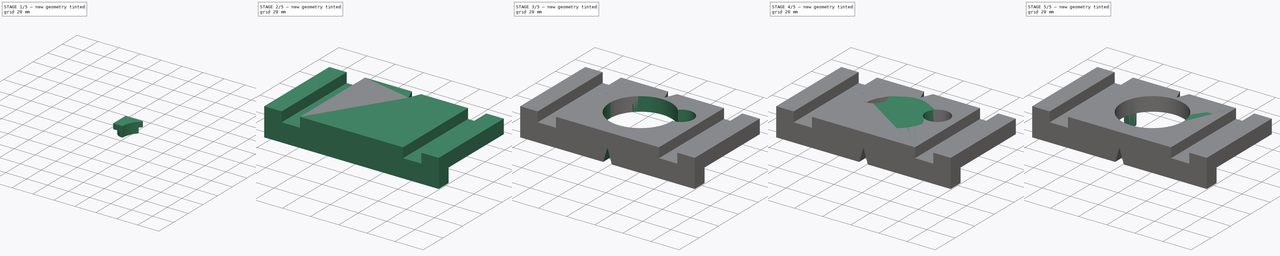
[diagram: build sequence overview — one tinted view per stage of 5, left to right]
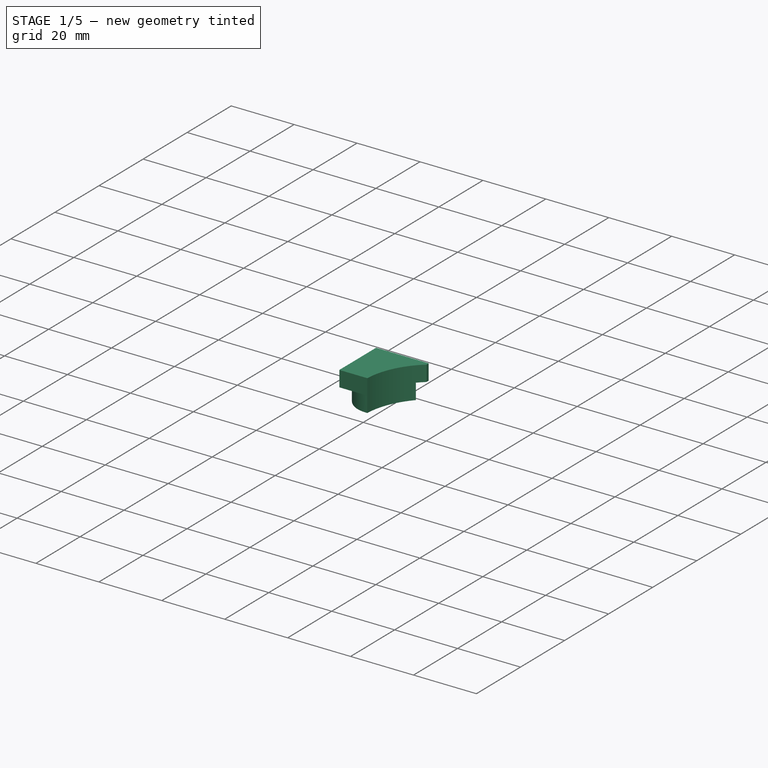
[diagram: stage 1 of 5 — iso view after this stage's code; geometry added in this stage tinted green]
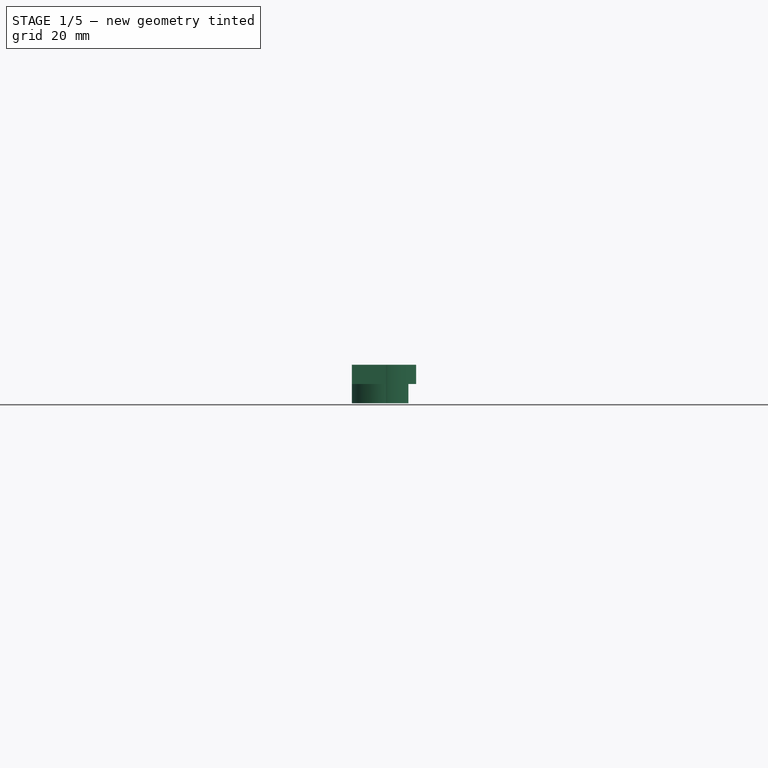
[diagram: stage 1 of 5 — front view after this stage's code; geometry added in this stage tinted green]
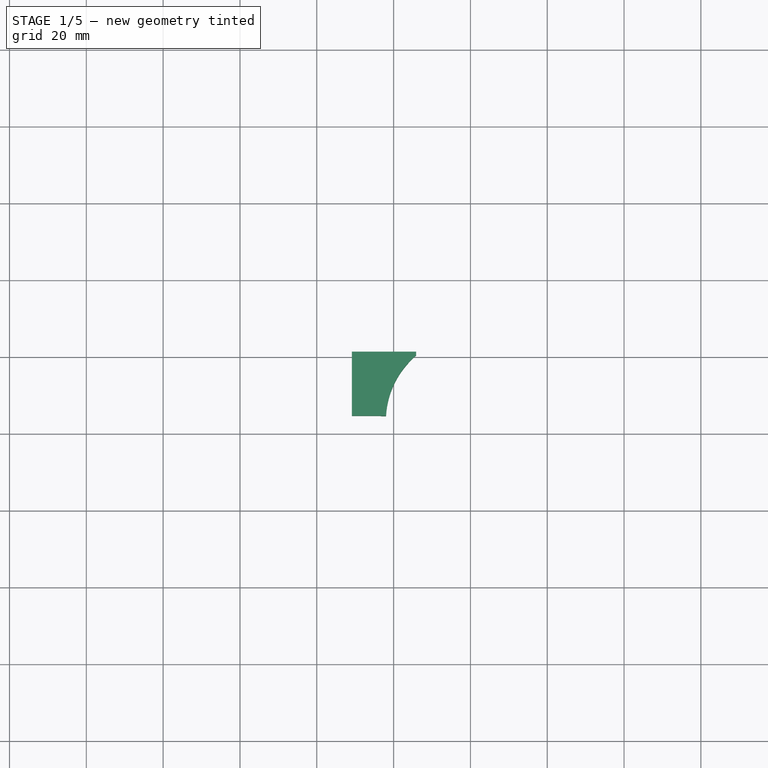
[diagram: stage 1 of 5 — top view after this stage's code; geometry added in this stage tinted green]
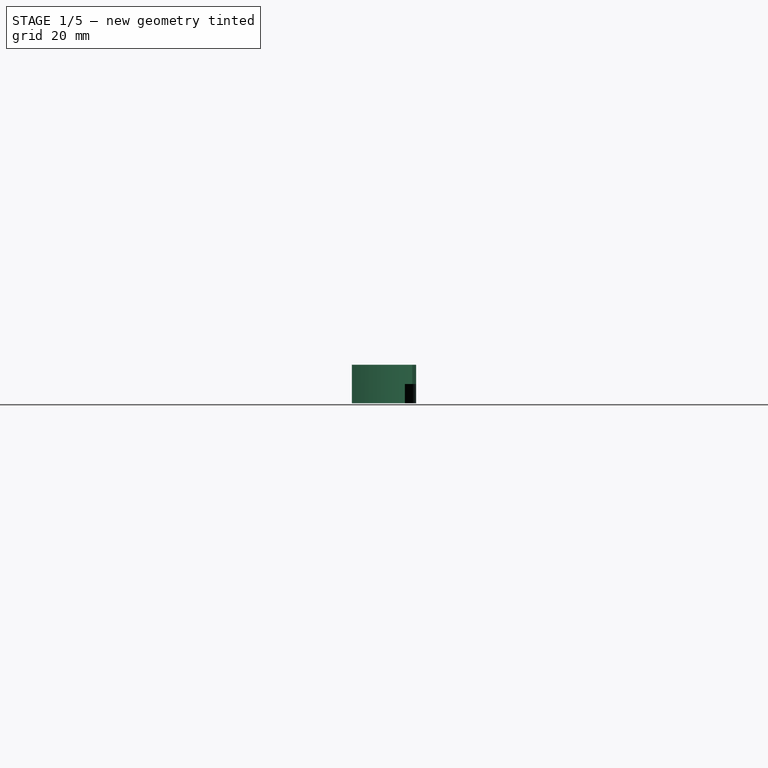
[diagram: stage 1 of 5 — right view after this stage's code; geometry added in this stage tinted green]
FCSTD DOCUMENT  (FreeCAD 0.21R33771 (Git))
Label: ConcealedHingeTemplate
License: All rights reserved
LicenseURL: https://en.wikipedia.org/wiki/All_rights_reserved
objects: Sketcher::SketchObject×15, PartDesign::Pocket×9, PartDesign::Body×5, PartDesign::Pad×4, PartDesign::FeatureBase×3, Spreadsheet::Sheet×1, PartDesign::SubShapeBinder×1
note: 50 computed .brp shape members not serialized (recipe doc carries the construction recipe); baked Part::Feature solids carry a one-line shape summary decoded from their .brp

FEATURE [PartDesign::Body] Body003  label="HingeTemplateBothBody"
  BaseFeature = -> Body
  Group = -> [BaseFeature002,Sketch009,Sketch011,Pocket005,Pocket006,Sketch012,Pocket007]
  Origin = -> Origin003
  Tip = -> Pocket007
FEATURE [Sketcher::SketchObject] Sketch013
  FullyConstrained = true
  MapMode = 5
  Support = -> [XY_Plane004]
  expr: Constraints[10] = <<config>>.hole_x
  expr: Constraints[11] = <<config>>.hole_y
  expr: Constraints[12] = <<config>>.hinge_dia
  expr: Constraints[13] = <<config>>.copy_dia
  expr: Constraints[15] = <<config>>.hinge_copy_dia
  expr: Constraints[17] = <<config>>.bit_dia
  expr: Constraints[19] = <<config>>.copy_dia
  expr: Constraints[9] = <<config>>.hinge_x
  sketch-geometry (8):
    g0: Circle CenterX=0 CenterY=23.5 CenterZ=0 NormalX=0 NormalY=0 NormalZ=1 AngleXU=0 Radius=17.5
    g1: Circle CenterX=-22.5 CenterY=33 CenterZ=0 NormalX=0 NormalY=0 NormalZ=1 AngleXU=0 Radius=8.5
    g2: Circle CenterX=22.5 CenterY=33 CenterZ=0 NormalX=0 NormalY=0 NormalZ=1 AngleXU=0 Radius=8.5
    g3: LineSegment StartX=-22.5 StartY=33 StartZ=0 EndX=0 EndY=33 EndZ=0
    g4: LineSegment StartX=22.5 StartY=33 StartZ=0 EndX=0 EndY=33 EndZ=0
    g5: Circle CenterX=0 CenterY=23.5 CenterZ=0 NormalX=0 NormalY=0 NormalZ=1 AngleXU=0 Radius=22
    g6: Circle CenterX=0 CenterY=10 CenterZ=0 NormalX=0 NormalY=0 NormalZ=1 AngleXU=0 Radius=4
    g7: Circle CenterX=0 CenterY=10 CenterZ=0 NormalX=0 NormalY=0 NormalZ=1 AngleXU=0 Radius=8.5
  constraints (21):
    c: PointOnObject(g0,g-2)
    c: Coincident(g3,g1)
    c: PointOnObject(g3,g-2)
    c: Horizontal(g3)
    c: Coincident(g4,g2)
    c: Coincident(g4,g3)
    c: Horizontal(g4)
    c: Equal(g3,g4)
    c: Equal(g1,g2)
    c: DistanceY(g-1,g0) = 23.5
    c: DistanceY(g-1,g2) = 33
    c: DistanceX(g1,g2) = 45
    c: Diameter(g0) = 35
    c: Diameter(g1) = 17
    c: Coincident(g5,g0)
    c: Diameter(g5) = 44
    c: PointOnObject(g6,g-2)
    c: Diameter(g6) = 8
    c: Coincident(g7,g6)
    c: Diameter(g7) = 17
    c: Tangent(g5,g7)
FEATURE [Sketcher::SketchObject] Sketch014
  ExternalGeometry = -> [Sketch013]
  FullyConstrained = true
  MapMode = 5
  Support = -> [XY_Plane004]
  expr: Constraints[1] = 17 - 0.3
  sketch-geometry (1):
    g0: Circle CenterX=-22.5 CenterY=33 CenterZ=0 NormalX=0 NormalY=0 NormalZ=1 AngleXU=0 Radius=8.35
  constraints (2):
    c: Coincident(g0,g-3)
    c: Diameter(g0) = 16.7
FEATURE [Sketcher::SketchObject] Sketch015
  ExternalGeometry = -> [Sketch014]
  FullyConstrained = true
  MapMode = 5
  Support = -> [XY_Plane004]
  sketch-geometry (4):
    g0: LineSegment StartX=-30.85 StartY=41.35 StartZ=0 EndX=-14.15 EndY=41.35 EndZ=0
    g1: LineSegment StartX=-14.15 StartY=41.35 StartZ=0 EndX=-14.15 EndY=24.65 EndZ=0
    g2: LineSegment StartX=-14.15 StartY=24.65 StartZ=0 EndX=-30.85 EndY=24.65 EndZ=0
    g3: LineSegment StartX=-30.85 StartY=24.65 StartZ=0 EndX=-30.85 EndY=41.35 EndZ=0
  constraints (12):
    c: Coincident(g0,g1)
    c: Coincident(g1,g2)
    c: Coincident(g2,g3)
    c: Coincident(g3,g0)
    c: Horizontal(g0)
    c: Horizontal(g2)
    c: Vertical(g1)
    c: Vertical(g3)
    c: Tangent(g-3,g0)
    c: Tangent(g1,g-3)
    c: Tangent(g2,g-3)
    c: Tangent(g3,g-3)
FEATURE [PartDesign::Pad] Pad002
  Direction = (0,0,1)
  Length = 10
  Length2 = 10
  Profile = -> Sketch014
  ReferenceAxis = -> Sketch014 [N_Axis]
  Type = 0
  expr: Length = <<config>>.thickness
FEATURE [PartDesign::Pad] Pad003
  BaseFeature = -> Pad002
  Direction = (0,0,1)
  Length = 10
  Length2 = -5
  Profile = -> Sketch015
  ReferenceAxis = -> Sketch015 [N_Axis]
  Type = 4
  expr: Length = <<config>>.thickness
FEATURE [Sketcher::SketchObject] Sketch016
  ExternalGeometry = -> [Sketch013]
  FullyConstrained = true
  MapMode = 5
  Support = -> [XY_Plane004]
  sketch-geometry (1):
    g0: Circle CenterX=0 CenterY=23.5 CenterZ=0 NormalX=0 NormalY=0 NormalZ=1 AngleXU=0 Radius=22
  constraints (2):
    c: Coincident(g0,g-3)
    c: Tangent(g0,g-3)
FEATURE [PartDesign::Pocket] Pocket008
  BaseFeature = -> Pad003
  Direction = (0,0,-1)
  Length = 5
  Length2 = 5
  Profile = -> Sketch016
  ReferenceAxis = -> Sketch016 [N_Axis]
  Reversed = true
  Type = 1
FEATURE [PartDesign::Body] Body004  label="Inlay"
  Group = -> [Sketch013,Sketch014,Sketch015,Pad002,Pad003,Sketch016,Pocket008]
  Origin = -> Origin004
  Tip = -> Pocket008
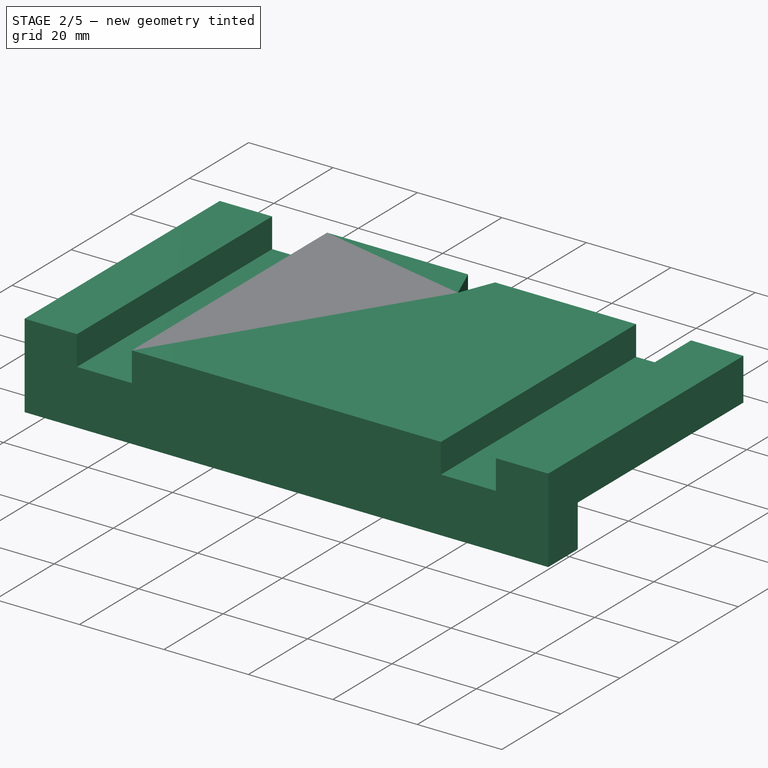
[diagram: stage 2 of 5 — iso view after this stage's code; geometry added in this stage tinted green]
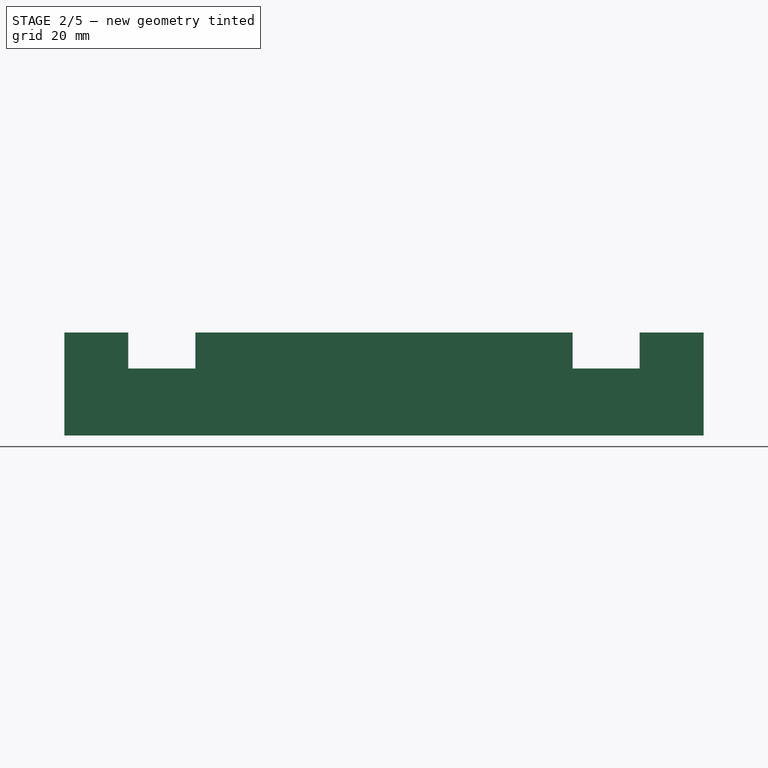
[diagram: stage 2 of 5 — front view after this stage's code; geometry added in this stage tinted green]
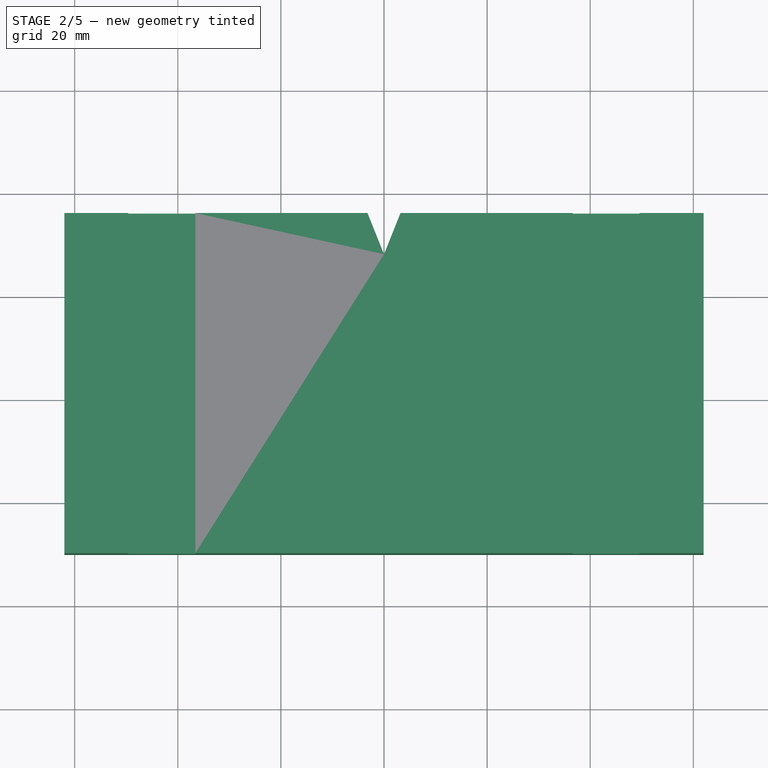
[diagram: stage 2 of 5 — top view after this stage's code; geometry added in this stage tinted green]
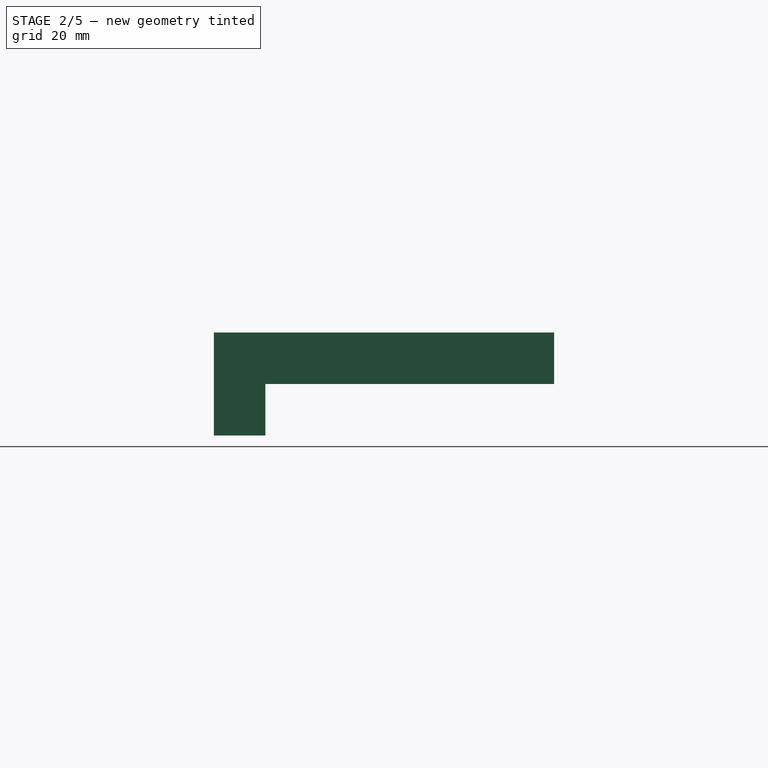
[diagram: stage 2 of 5 — right view after this stage's code; geometry added in this stage tinted green]
FEATURE [Sketcher::SketchObject] Sketch
  FullyConstrained = true
  MapMode = 5
  Support = -> [XY_Plane]
  expr: Constraints[10] = <<config>>.hole_x
  expr: Constraints[11] = <<config>>.hole_y
  expr: Constraints[12] = <<config>>.hinge_dia
  expr: Constraints[13] = <<config>>.copy_dia
  expr: Constraints[15] = <<config>>.hinge_copy_dia
  expr: Constraints[17] = <<config>>.bit_dia
  expr: Constraints[19] = <<config>>.copy_dia
  expr: Constraints[9] = <<config>>.hinge_x
  sketch-geometry (8):
    g0: Circle CenterX=0 CenterY=23.5 CenterZ=0 NormalX=0 NormalY=0 NormalZ=1 AngleXU=0 Radius=17.5
    g1: Circle CenterX=-22.5 CenterY=33 CenterZ=0 NormalX=0 NormalY=0 NormalZ=1 AngleXU=0 Radius=8.5
    g2: Circle CenterX=22.5 CenterY=33 CenterZ=0 NormalX=0 NormalY=0 NormalZ=1 AngleXU=0 Radius=8.5
    g3: LineSegment StartX=-22.5 StartY=33 StartZ=0 EndX=0 EndY=33 EndZ=0
    g4: LineSegment StartX=22.5 StartY=33 StartZ=0 EndX=0 EndY=33 EndZ=0
    g5: Circle CenterX=0 CenterY=23.5 CenterZ=0 NormalX=0 NormalY=0 NormalZ=1 AngleXU=0 Radius=22
    g6: Circle CenterX=0 CenterY=10 CenterZ=0 NormalX=0 NormalY=0 NormalZ=1 AngleXU=0 Radius=4
    g7: Circle CenterX=0 CenterY=10 CenterZ=0 NormalX=0 NormalY=0 NormalZ=1 AngleXU=0 Radius=8.5
  constraints (21):
    c: PointOnObject(g0,g-2)
    c: Coincident(g3,g1)
    c: PointOnObject(g3,g-2)
    c: Horizontal(g3)
    c: Coincident(g4,g2)
    c: Coincident(g4,g3)
    c: Horizontal(g4)
    c: Equal(g3,g4)
    c: Equal(g1,g2)
    c: DistanceY(g-1,g0) = 23.5
    c: DistanceY(g-1,g2) = 33
    c: DistanceX(g1,g2) = 45
    c: Diameter(g0) = 35
    c: Diameter(g1) = 17
    c: Coincident(g5,g0)
    c: Diameter(g5) = 44
    c: PointOnObject(g6,g-2)
    c: Diameter(g6) = 8
    c: Coincident(g7,g6)
    c: Diameter(g7) = 17
    c: Tangent(g5,g7)
FEATURE [Spreadsheet::Sheet] Spreadsheet  label="config"
  cells = A1='hinge diameter; B1(hinge_dia)==35 mm; A2='bit diameter; B2(bit_dia)==8 mm; A3='copy diameter; B3(copy_dia)==17 mm; A4='hinge x; B4(hinge_x)==23.5 mm; A5='hole x; B5(hole_x)==33 mm; A6='hole y; B6(hole_y)==45 mm; A7='hinge+copy dia; B7(hinge_copy_dia)==hinge_dia + copy_dia - bit_dia; A8='hole dia; B8(hole_dia)==8 mm; A9='thickness; B9(thickness)==10 mm; A10='width; B10(width)==hinge_copy_dia * 1.5; A11='length; B11(length)==(hole_y + copy_dia) * 2
FEATURE [Sketcher::SketchObject] Sketch002  label="MainSketch"
  FullyConstrained = true
  MapMode = 5
  Placement = pos=(0,0,0) rot=(0.57735,0.57735,0.57735;2.0944rad)
  Support = -> [YZ_Plane]
  expr: Constraints[14] = <<config>>.thickness
  expr: Constraints[15] = <<config>>.width
  sketch-geometry (6):
    g0: LineSegment StartX=0 StartY=0 StartZ=0 EndX=0 EndY=-10 EndZ=0
    g1: LineSegment StartX=0 StartY=-10 StartZ=0 EndX=-10 EndY=-10 EndZ=0
    g2: LineSegment StartX=-10 StartY=-10 StartZ=0 EndX=-10 EndY=10 EndZ=0
    g3: LineSegment StartX=-10 StartY=10 StartZ=0 EndX=56 EndY=10 EndZ=0
    g4: LineSegment StartX=56 StartY=10 StartZ=0 EndX=56 EndY=0 EndZ=0
    g5: LineSegment StartX=56 StartY=0 StartZ=0 EndX=0 EndY=0 EndZ=0
  constraints (17):
    c: Coincident(g-1,g0)
    c: PointOnObject(g0,g-2)
    c: Coincident(g0,g1)
    c: Horizontal(g1)
    c: Coincident(g1,g2)
    c: Vertical(g2)
    c: Coincident(g2,g3)
    c: Horizontal(g3)
    c: Coincident(g3,g4)
    c: Vertical(g4)
    c: Coincident(g4,g5)
    c: Coincident(g5,g0)
    c: Horizontal(g5)
    c: Equal(g1,g4)
    c: DistanceY(g4,g4) = 10
    c: DistanceX(g3,g3) = 66
    c: Equal(g0,g4)
FEATURE [PartDesign::Pad] Pad
  Direction = (1,-2e-16,3e-16)
  Length = 124
  Length2 = 10
  Midplane = true
  Placement = pos=(0,0,0) rot=(0.57735,0.57735,0.57735;2.0944rad)
  Profile = -> Sketch002
  ReferenceAxis = -> Sketch002 [N_Axis]
  Type = 0
  expr: Length = <<config>>.length
FEATURE [Sketcher::SketchObject] Sketch003  label="ClampSketch"
  FullyConstrained = true
  MapMode = 5
  Placement = pos=(0,0,0) rot=(1,0,0;1.5708rad)
  Support = -> [XZ_Plane]
  expr: Constraints[25] = <<config>>.thickness + 1 mm
  expr: Constraints[28] = (<<config>>.hinge_copy_dia + <<config>>.copy_dia) * 1.2
  sketch-geometry (10):
    g0: LineSegment StartX=-49.6 StartY=11 StartZ=0 EndX=-36.6 EndY=11 EndZ=0
    g1: LineSegment StartX=-36.6 StartY=11 StartZ=0 EndX=-36.6 EndY=3 EndZ=0
    g2: LineSegment StartX=-36.6 StartY=3 StartZ=0 EndX=-49.6 EndY=3 EndZ=0
    g3: LineSegment StartX=-49.6 StartY=3 StartZ=0 EndX=-49.6 EndY=11 EndZ=0
    g4: LineSegment StartX=36.6 StartY=11 StartZ=0 EndX=49.6 EndY=11 EndZ=0
    g5: LineSegment StartX=49.6 StartY=11 StartZ=0 EndX=49.6 EndY=3 EndZ=0
    g6: LineSegment StartX=49.6 StartY=3 StartZ=0 EndX=36.6 EndY=3 EndZ=0
    g7: LineSegment StartX=36.6 StartY=3 StartZ=0 EndX=36.6 EndY=11 EndZ=0
    g8: LineSegment StartX=-36.6 StartY=11 StartZ=0 EndX=0 EndY=11 EndZ=0
    g9: LineSegment StartX=36.6 StartY=11 StartZ=0 EndX=0 EndY=11 EndZ=0
  constraints (29):
    c: Coincident(g0,g1)
    c: Coincident(g1,g2)
    c: Coincident(g2,g3)
    c: Coincident(g3,g0)
    c: Horizontal(g0)
    c: Horizontal(g2)
    c: Vertical(g1)
    c: Vertical(g3)
    c: Coincident(g4,g5)
    c: Coincident(g5,g6)
    c: Coincident(g6,g7)
    c: Coincident(g7,g4)
    c: Horizontal(g4)
    c: Horizontal(g6)
    c: Vertical(g5)
    c: Vertical(g7)
    c: Equal(g0,g4)
    c: Equal(g1,g5)
    c: Coincident(g8,g0)
    c: Horizontal(g8)
    c: Coincident(g9,g4)
    c: Coincident(g9,g8)
    c: Horizontal(g9)
    c: PointOnObject(g8,g-2)
    c: Equal(g8,g9)
    c: DistanceY(g-1,g8) = 11
    c: DistanceY(g3,g3) = 8
    c: DistanceX(g2,g2) = 13
    c: DistanceX(g0,g4) = 73.2
FEATURE [PartDesign::Pocket] Pocket
  BaseFeature = -> Pad
  Direction = (0,1,-2e-16)
  Length = 5
  Length2 = 5
  Midplane = true
  Placement = pos=(0,0,0) rot=(0.57735,0.57735,0.57735;2.0944rad)
  Profile = -> Sketch003
  ReferenceAxis = -> Sketch003 [N_Axis]
  Type = 1
FEATURE [Sketcher::SketchObject] Sketch004  label="CenterTopSketch"
  FullyConstrained = true
  MapMode = 5
  Support = -> [XY_Plane]
  expr: Constraints[1] = <<config>>.width - <<config>>.thickness
  sketch-geometry (4):
    g0: LineSegment StartX=0 StartY=0 StartZ=0 EndX=0 EndY=56 EndZ=0
    g1: LineSegment StartX=0 StartY=48 StartZ=0 EndX=-4 EndY=58 EndZ=0
    g2: LineSegment StartX=-4 StartY=58 StartZ=0 EndX=4 EndY=58 EndZ=0
    g3: LineSegment StartX=4 StartY=58 StartZ=0 EndX=0 EndY=48 EndZ=0
  constraints (12):
    c: Coincident(g0,g-1)
    c: DistanceY(g0,g0) = 56
    c: Vertical(g0)
    c: PointOnObject(g1,g0)
    c: Coincident(g1,g2)
    c: Horizontal(g2)
    c: Coincident(g2,g3)
    c: Coincident(g3,g1)
    c: Equal(g1,g3)
    c: DistanceY(g1,g0) = 8
    c: DistanceY(g0,g2) = 2
    c: DistanceX(g2,g2) = 8
FEATURE [PartDesign::Pocket] Pocket001
  BaseFeature = -> Pocket
  Direction = (0,0,-1)
  Length = 5
  Length2 = 5
  Placement = pos=(0,0,0) rot=(0.57735,0.57735,0.57735;2.0944rad)
  Profile = -> Sketch004
  ReferenceAxis = -> Sketch004 [N_Axis]
  Reversed = true
  Type = 1
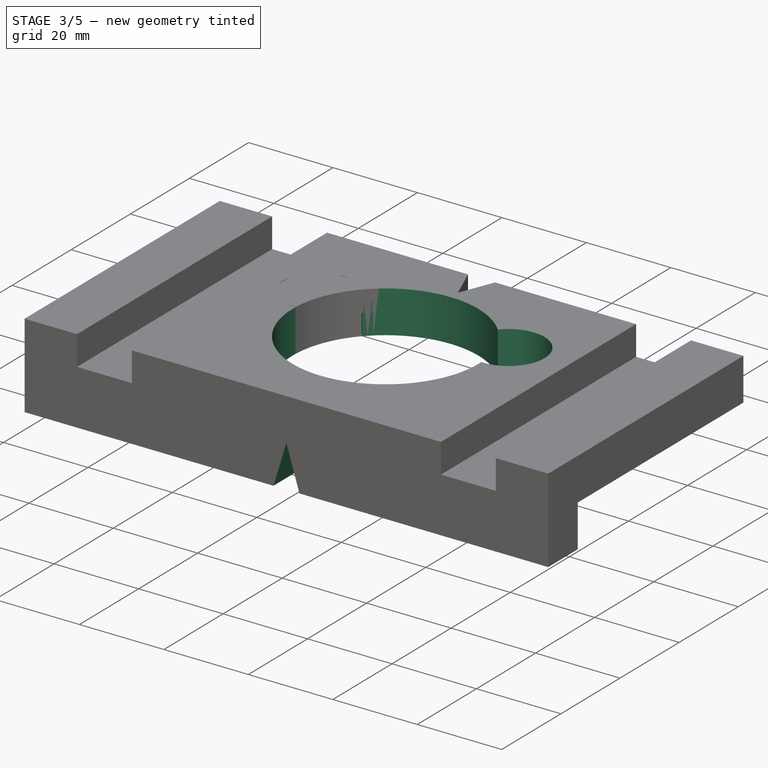
[diagram: stage 3 of 5 — iso view after this stage's code; geometry added in this stage tinted green]
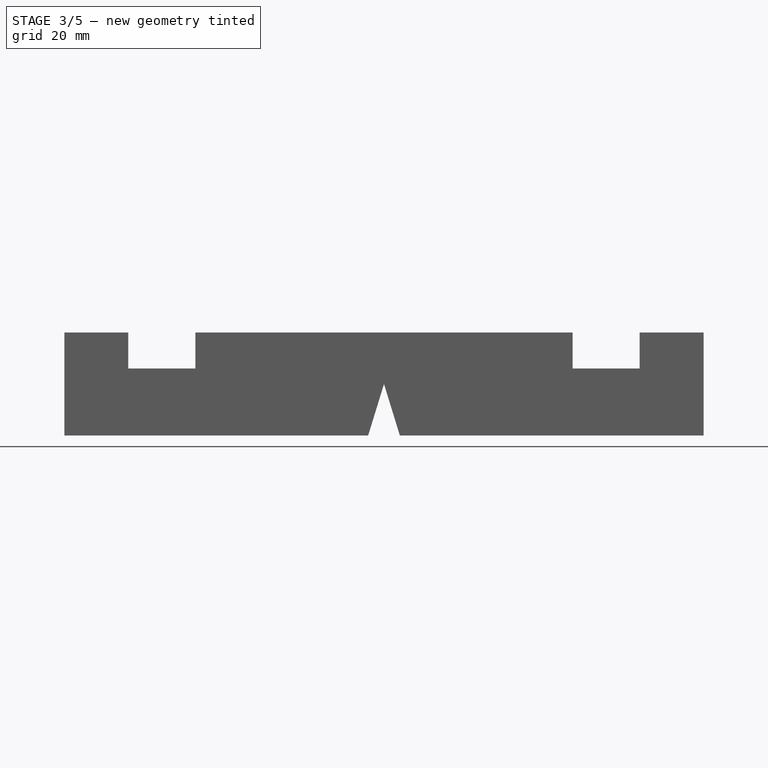
[diagram: stage 3 of 5 — front view after this stage's code; geometry added in this stage tinted green]
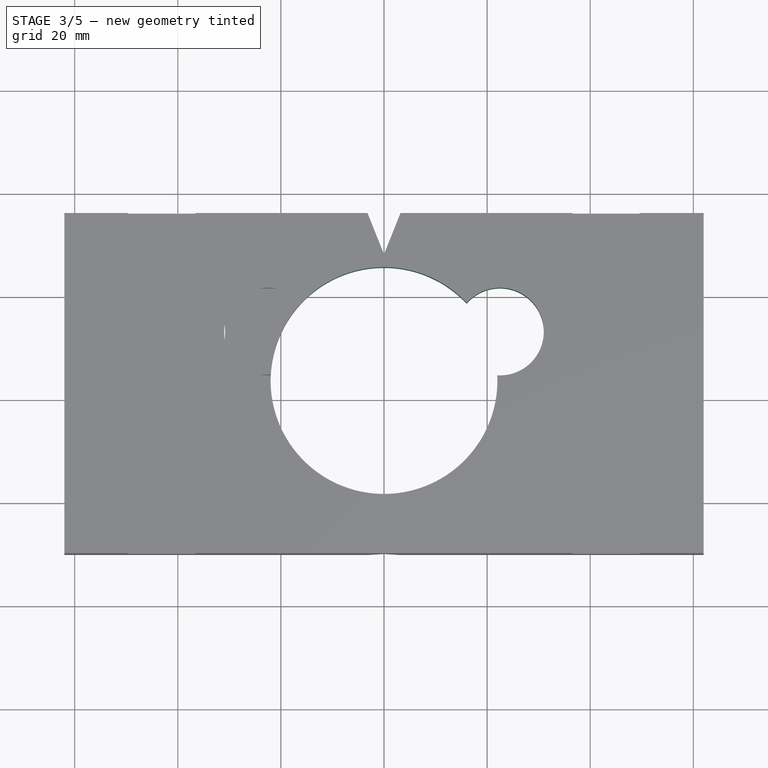
[diagram: stage 3 of 5 — top view after this stage's code; geometry added in this stage tinted green]
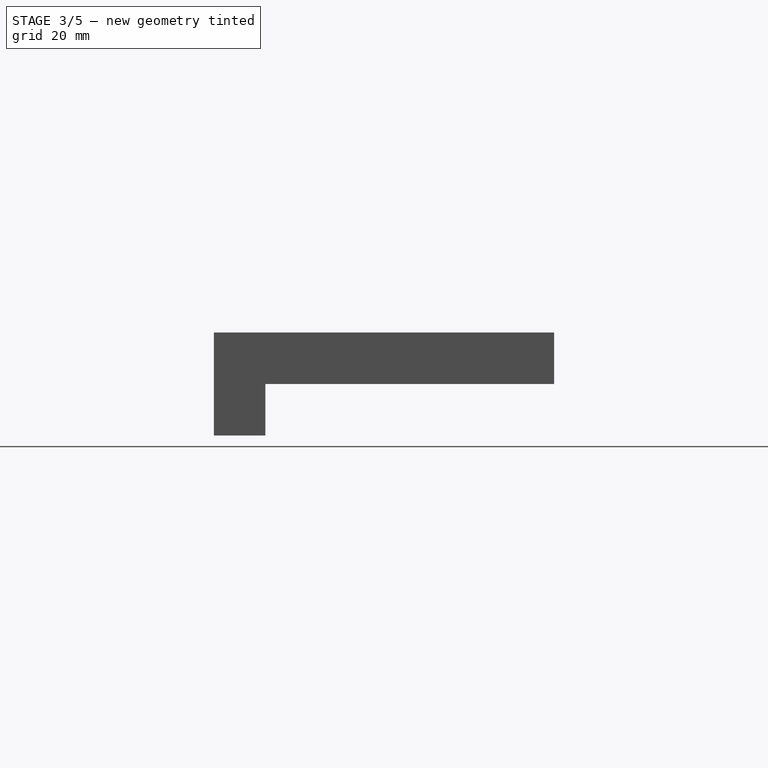
[diagram: stage 3 of 5 — right view after this stage's code; geometry added in this stage tinted green]
FEATURE [Sketcher::SketchObject] Sketch005  label="CenterSideSketch"
  FullyConstrained = true
  MapMode = 5
  Placement = pos=(0,0,0) rot=(1,0,0;1.5708rad)
  Support = -> [XZ_Plane]
  expr: Constraints[7] = 8 mm + 5 mm
  sketch-geometry (3):
    g0: LineSegment StartX=4e-16 StartY=0 StartZ=0 EndX=-4 EndY=-13 EndZ=0
    g1: LineSegment StartX=-4 StartY=-13 StartZ=0 EndX=4 EndY=-13 EndZ=0
    g2: LineSegment StartX=4 StartY=-13 StartZ=0 EndX=4e-16 EndY=0 EndZ=0
  constraints (8):
    c: Coincident(g0,g-1)
    c: Coincident(g1,g0)
    c: Horizontal(g1)
    c: Coincident(g2,g0)
    c: Equal(g0,g2)
    c: DistanceX(g1,g1) = 8
    c: Coincident(g1,g2)
    c: DistanceY(g1,g0) = 13
FEATURE [PartDesign::Pocket] Pocket002
  BaseFeature = -> Pocket001
  Direction = (0,1,-2e-16)
  Length = 5
  Length2 = 5
  Placement = pos=(0,0,0) rot=(0.57735,0.57735,0.57735;2.0944rad)
  Profile = -> Sketch005
  ReferenceAxis = -> Sketch005 [N_Axis]
  Reversed = true
  Type = 1
FEATURE [PartDesign::Body] Body002  label="HingeTemplateHingeBody"
  BaseFeature = -> Body
  Group = -> [BaseFeature001,Sketch007,Binder,Sketch008,Pad001,Pocket004]
  Origin = -> Origin002
  Tip = -> Pocket004
FEATURE [PartDesign::FeatureBase] BaseFeature002
  BaseFeature = -> Body
FEATURE [Sketcher::SketchObject] Sketch009
  FullyConstrained = true
  MapMode = 5
  Support = -> [XY_Plane003]
  expr: Constraints[10] = <<config>>.hole_x
  expr: Constraints[11] = <<config>>.hole_y
  expr: Constraints[12] = <<config>>.hinge_dia
  expr: Constraints[13] = <<config>>.copy_dia
  expr: Constraints[15] = <<config>>.hinge_copy_dia
  expr: Constraints[17] = <<config>>.bit_dia
  expr: Constraints[19] = <<config>>.copy_dia
  expr: Constraints[9] = <<config>>.hinge_x
  sketch-geometry (8):
    g0: Circle CenterX=0 CenterY=23.5 CenterZ=0 NormalX=0 NormalY=0 NormalZ=1 AngleXU=0 Radius=17.5
    g1: Circle CenterX=-22.5 CenterY=33 CenterZ=0 NormalX=0 NormalY=0 NormalZ=1 AngleXU=0 Radius=8.5
    g2: Circle CenterX=22.5 CenterY=33 CenterZ=0 NormalX=0 NormalY=0 NormalZ=1 AngleXU=0 Radius=8.5
    g3: LineSegment StartX=-22.5 StartY=33 StartZ=0 EndX=0 EndY=33 EndZ=0
    g4: LineSegment StartX=22.5 StartY=33 StartZ=0 EndX=0 EndY=33 EndZ=0
    g5: Circle CenterX=0 CenterY=23.5 CenterZ=0 NormalX=0 NormalY=0 NormalZ=1 AngleXU=0 Radius=22
    g6: Circle CenterX=0 CenterY=10 CenterZ=0 NormalX=0 NormalY=0 NormalZ=1 AngleXU=0 Radius=4
    g7: Circle CenterX=0 CenterY=10 CenterZ=0 NormalX=0 NormalY=0 NormalZ=1 AngleXU=0 Radius=8.5
  constraints (21):
    c: PointOnObject(g0,g-2)
    c: Coincident(g3,g1)
    c: PointOnObject(g3,g-2)
    c: Horizontal(g3)
    c: Coincident(g4,g2)
    c: Coincident(g4,g3)
    c: Horizontal(g4)
    c: Equal(g3,g4)
    c: Equal(g1,g2)
    c: DistanceY(g-1,g0) = 23.5
    c: DistanceY(g-1,g2) = 33
    c: DistanceX(g1,g2) = 45
    c: Diameter(g0) = 35
    c: Diameter(g1) = 17
    c: Coincident(g5,g0)
    c: Diameter(g5) = 44
    c: PointOnObject(g6,g-2)
    c: Diameter(g6) = 8
    c: Coincident(g7,g6)
    c: Diameter(g7) = 17
    c: Tangent(g5,g7)
FEATURE [Sketcher::SketchObject] Sketch011
  FullyConstrained = true
  MapMode = 5
  Support = -> [XY_Plane003]
  expr: Constraints[10] = <<config>>.hole_x
  expr: Constraints[11] = <<config>>.hole_y
  expr: Constraints[12] = <<config>>.hinge_dia
  expr: Constraints[13] = <<config>>.copy_dia
  expr: Constraints[15] = <<config>>.hinge_copy_dia
  expr: Constraints[17] = <<config>>.bit_dia
  expr: Constraints[19] = <<config>>.copy_dia
  expr: Constraints[9] = <<config>>.hinge_x
  sketch-geometry (8):
    g0: Circle CenterX=0 CenterY=23.5 CenterZ=0 NormalX=0 NormalY=0 NormalZ=1 AngleXU=0 Radius=17.5
    g1: Circle CenterX=-22.5 CenterY=33 CenterZ=0 NormalX=0 NormalY=0 NormalZ=1 AngleXU=0 Radius=8.5
    g2: Circle CenterX=22.5 CenterY=33 CenterZ=0 NormalX=0 NormalY=0 NormalZ=1 AngleXU=0 Radius=8.5
    g3: LineSegment StartX=-22.5 StartY=33 StartZ=0 EndX=0 EndY=33 EndZ=0
    g4: LineSegment StartX=22.5 StartY=33 StartZ=0 EndX=0 EndY=33 EndZ=0
    g5: Circle CenterX=0 CenterY=23.5 CenterZ=0 NormalX=0 NormalY=0 NormalZ=1 AngleXU=0 Radius=22
    g6: Circle CenterX=0 CenterY=10 CenterZ=0 NormalX=0 NormalY=0 NormalZ=1 AngleXU=0 Radius=4
    g7: Circle CenterX=0 CenterY=10 CenterZ=0 NormalX=0 NormalY=0 NormalZ=1 AngleXU=0 Radius=8.5
  constraints (21):
    c: PointOnObject(g0,g-2)
    c: Coincident(g3,g1)
    c: PointOnObject(g3,g-2)
    c: Horizontal(g3)
    c: Coincident(g4,g2)
    c: Coincident(g4,g3)
    c: Horizontal(g4)
    c: Equal(g3,g4)
    c: Equal(g1,g2)
    c: DistanceY(g-1,g0) = 23.5
    c: DistanceY(g-1,g2) = 33
    c: DistanceX(g1,g2) = 45
    c: Diameter(g0) = 35
    c: Diameter(g1) = 17
    c: Coincident(g5,g0)
    c: Diameter(g5) = 44
    c: PointOnObject(g6,g-2)
    c: Diameter(g6) = 8
    c: Coincident(g7,g6)
    c: Diameter(g7) = 17
    c: Tangent(g5,g7)
FEATURE [PartDesign::Pocket] Pocket005
  BaseFeature = -> BaseFeature002
  Direction = (0,0,-1)
  Length = 5
  Length2 = 5
  Profile = -> Sketch011
  ReferenceAxis = -> Sketch011 [N_Axis]
  Reversed = true
  Type = 1
FEATURE [PartDesign::Pocket] Pocket006
  BaseFeature = -> Pocket005
  Direction = (0,0,-1)
  Length = 5
  Length2 = 5
  Profile = -> Sketch009
  ReferenceAxis = -> Sketch009 [N_Axis]
  Reversed = true
  Type = 1
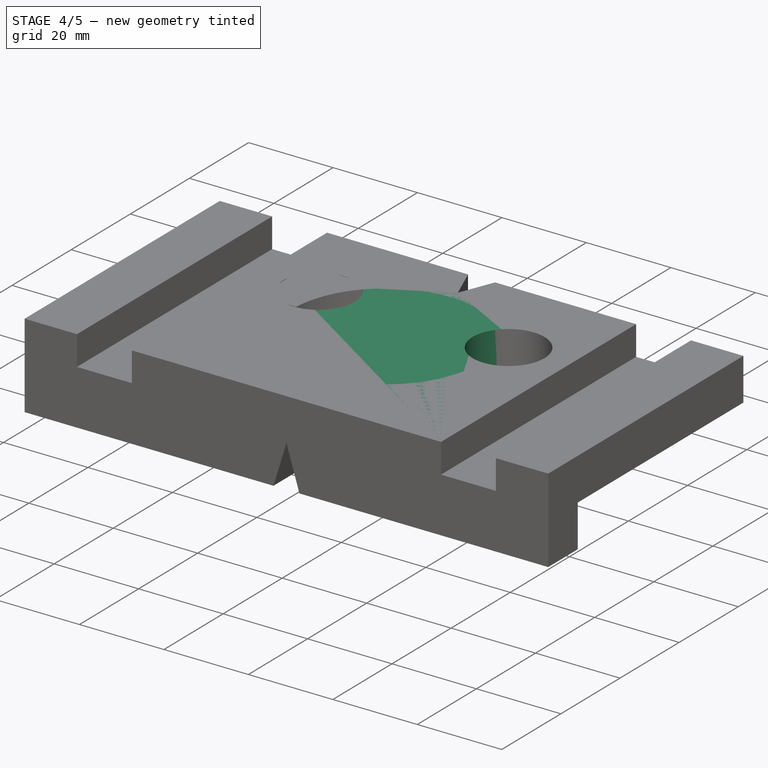
[diagram: stage 4 of 5 — iso view after this stage's code; geometry added in this stage tinted green]
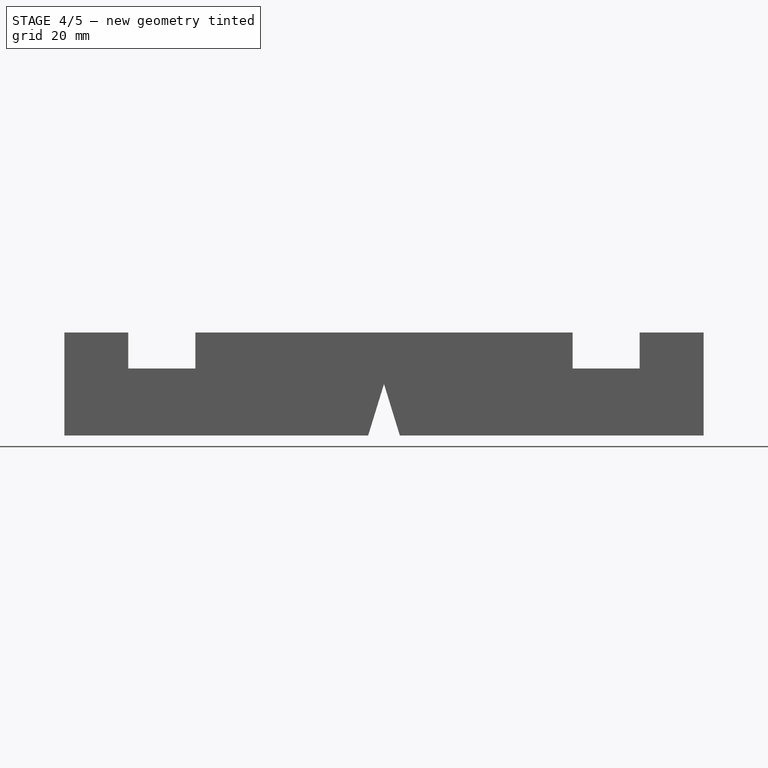
[diagram: stage 4 of 5 — front view after this stage's code; geometry added in this stage tinted green]
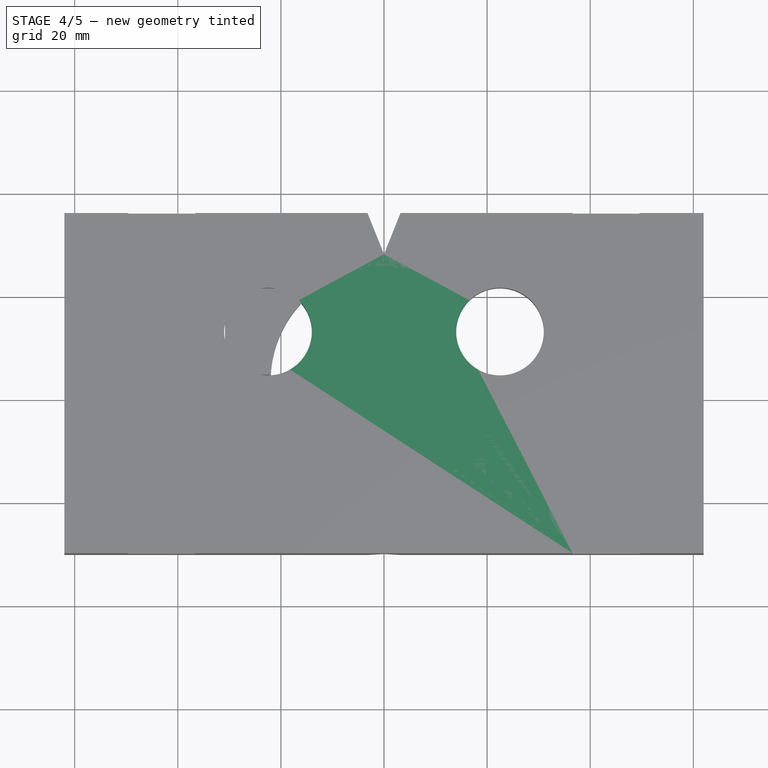
[diagram: stage 4 of 5 — top view after this stage's code; geometry added in this stage tinted green]
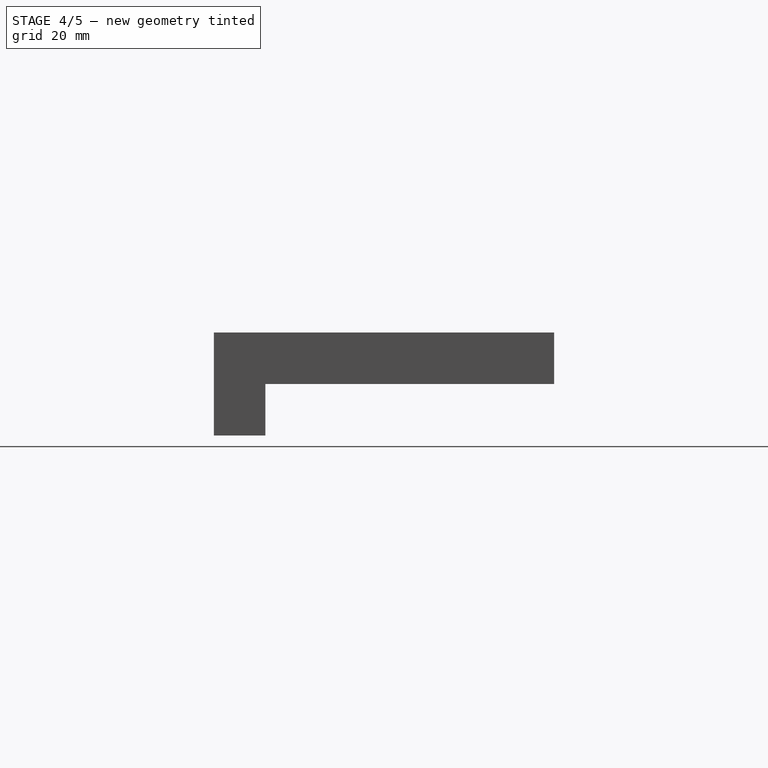
[diagram: stage 4 of 5 — right view after this stage's code; geometry added in this stage tinted green]
FEATURE [PartDesign::Body] Body  label="HingeTemplateBaseBody"
  Group = -> [Sketch,Sketch002,Pad,Sketch003,Pocket,Sketch004,Pocket001,Sketch005,Pocket002]
  Origin = -> Origin
  Tip = -> Pocket002
FEATURE [PartDesign::FeatureBase] BaseFeature  label="HoleBaseFeature"
  BaseFeature = -> Body
FEATURE [Sketcher::SketchObject] Sketch006  label="HoleSketch"
  FullyConstrained = true
  MapMode = 5
  Support = -> [XY_Plane001]
  expr: Constraints[10] = <<config>>.copy_dia
  expr: Constraints[8] = <<config>>.hole_x
  expr: Constraints[9] = <<config>>.hole_y
  sketch-geometry (4):
    g0: Circle CenterX=-22.5 CenterY=33 CenterZ=0 NormalX=0 NormalY=0 NormalZ=1 AngleXU=0 Radius=8.5
    g1: Circle CenterX=22.5 CenterY=33 CenterZ=0 NormalX=0 NormalY=0 NormalZ=1 AngleXU=0 Radius=8.5
    g2: LineSegment StartX=-22.5 StartY=33 StartZ=0 EndX=0 EndY=33 EndZ=0
    g3: LineSegment StartX=22.5 StartY=33 StartZ=0 EndX=0 EndY=33 EndZ=0
  constraints (11):
    c: Coincident(g2,g0)
    c: PointOnObject(g2,g-2)
    c: Horizontal(g2)
    c: Coincident(g3,g1)
    c: Coincident(g3,g2)
    c: Horizontal(g3)
    c: Equal(g2,g3)
    c: Equal(g0,g1)
    c: DistanceY(g-1,g1) = 33
    c: DistanceX(g0,g1) = 45
    c: Diameter(g0) = 17
FEATURE [PartDesign::Pocket] Pocket003
  BaseFeature = -> BaseFeature
  Direction = (0,0,-1)
  Length = 5
  Length2 = 5
  Profile = -> Sketch006
  ReferenceAxis = -> Sketch006 [N_Axis]
  Reversed = true
  Type = 1
FEATURE [Sketcher::SketchObject] Sketch012
  ExternalGeometry = -> [Sketch009]
  FullyConstrained = true
  MapMode = 5
  Support = -> [XY_Plane003]
  sketch-geometry (8):
    g0: LineSegment StartX=-31 StartY=41.5 StartZ=0 EndX=-14 EndY=41.5 EndZ=0
    g1: LineSegment StartX=-14 StartY=41.5 StartZ=0 EndX=-14 EndY=24.5 EndZ=0
    g2: LineSegment StartX=-14 StartY=24.5 StartZ=0 EndX=-31 EndY=24.5 EndZ=0
    g3: LineSegment StartX=-31 StartY=24.5 StartZ=0 EndX=-31 EndY=41.5 EndZ=0
    g4: LineSegment StartX=14 StartY=41.5 StartZ=0 EndX=31 EndY=41.5 EndZ=0
    g5: LineSegment StartX=31 StartY=41.5 StartZ=0 EndX=31 EndY=24.5 EndZ=0
    g6: LineSegment StartX=31 StartY=24.5 StartZ=0 EndX=14 EndY=24.5 EndZ=0
    g7: LineSegment StartX=14 StartY=24.5 StartZ=0 EndX=14 EndY=41.5 EndZ=0
  constraints (24):
    c: Coincident(g0,g1)
    c: Coincident(g1,g2)
    c: Coincident(g2,g3)
    c: Coincident(g3,g0)
    c: Horizontal(g0)
    c: Horizontal(g2)
    c: Vertical(g1)
    c: Vertical(g3)
    c: Coincident(g4,g5)
    c: Coincident(g5,g6)
    c: Coincident(g6,g7)
    c: Coincident(g7,g4)
    c: Horizontal(g4)
    c: Horizontal(g6)
    c: Vertical(g5)
    c: Vertical(g7)
    c: Tangent(g5,g-3)
    c: Tangent(g7,g-3)
    c: Tangent(g4,g-3)
    c: Tangent(g6,g-3)
    c: Tangent(g1,g-4)
    c: Tangent(g0,g-4)
    c: Tangent(g3,g-4)
    c: Tangent(g2,g-4)
FEATURE [PartDesign::Pocket] Pocket007
  BaseFeature = -> Pocket006
  Direction = (0,0,-1)
  Length = 10
  Length2 = -5
  Profile = -> Sketch012
  ReferenceAxis = -> Sketch012 [N_Axis]
  Reversed = true
  Type = 4
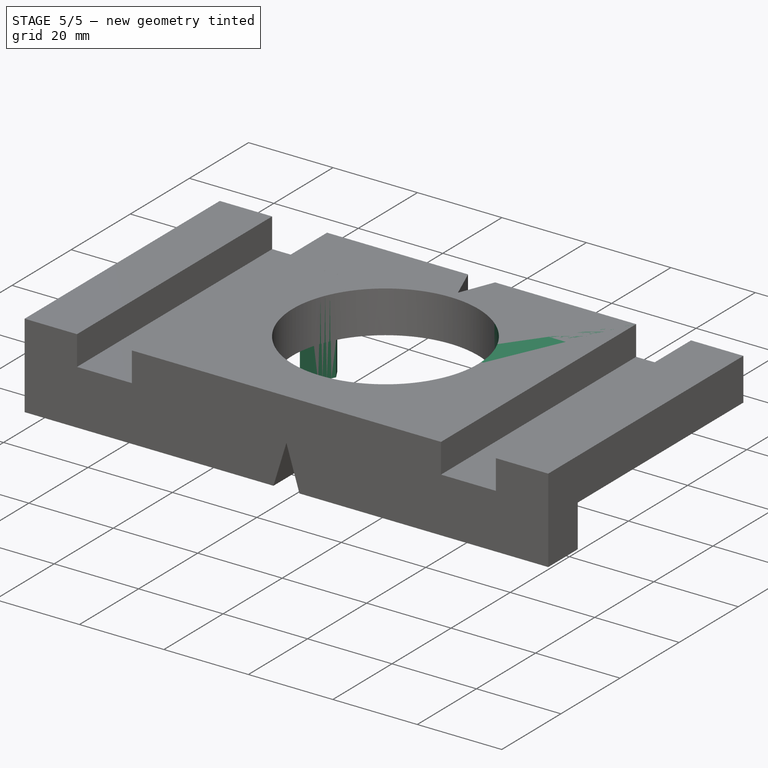
[diagram: stage 5 of 5 — iso view after this stage's code; geometry added in this stage tinted green]
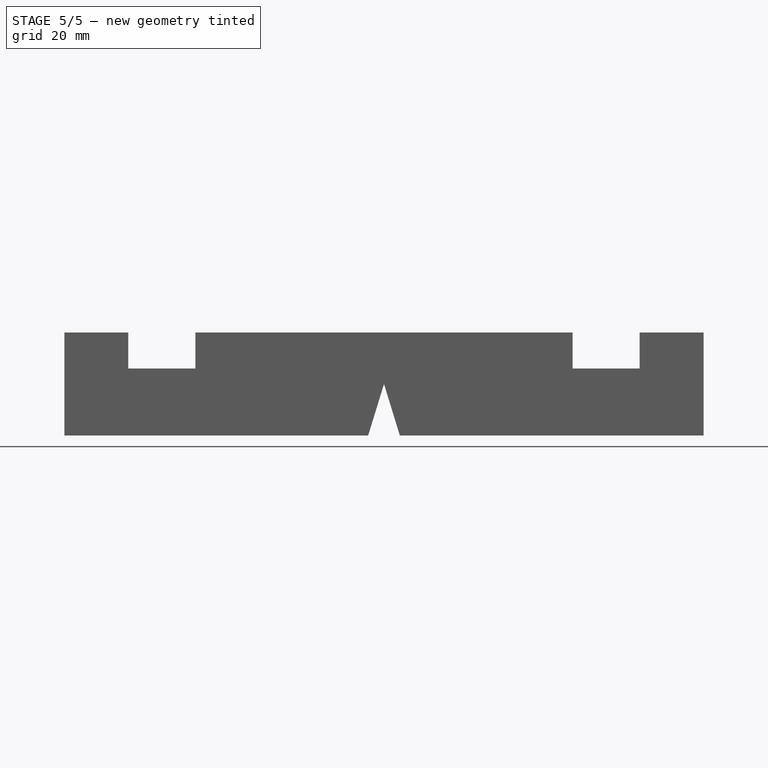
[diagram: stage 5 of 5 — front view after this stage's code; geometry added in this stage tinted green]
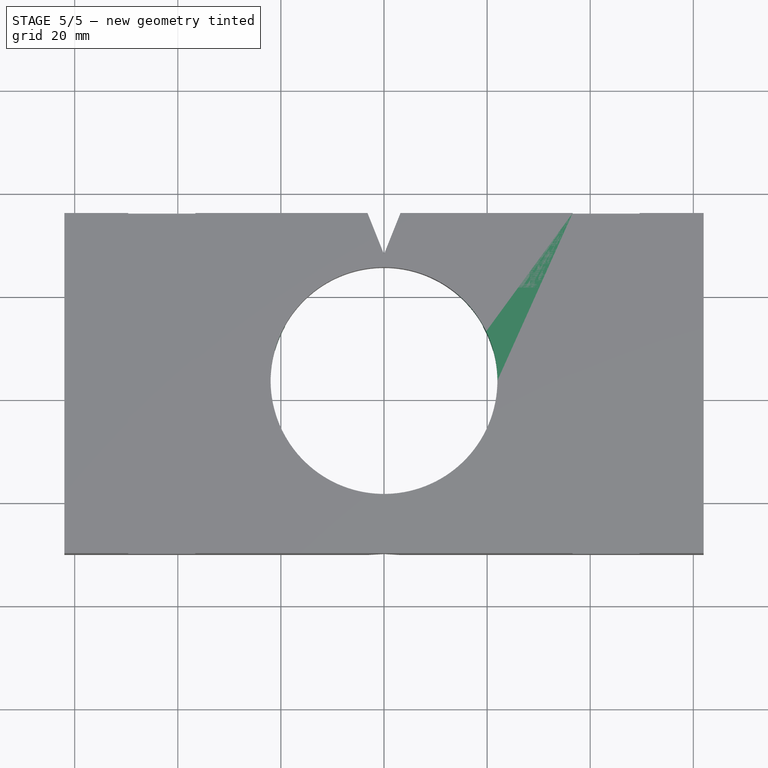
[diagram: stage 5 of 5 — top view after this stage's code; geometry added in this stage tinted green]
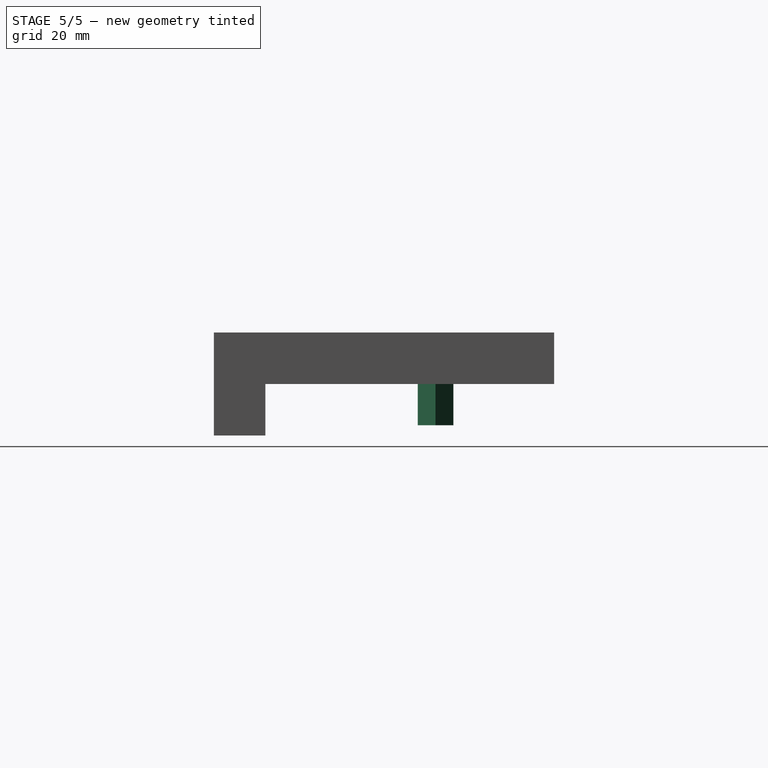
[diagram: stage 5 of 5 — right view after this stage's code; geometry added in this stage tinted green]
FEATURE [PartDesign::Body] Body001  label="HingeTemplateHoleBody"
  BaseFeature = -> Body
  Group = -> [BaseFeature,Sketch006,Pocket003]
  Origin = -> Origin001
  Tip = -> Pocket003
FEATURE [PartDesign::FeatureBase] BaseFeature001  label="HingeBaseFeature"
  BaseFeature = -> Body
FEATURE [Sketcher::SketchObject] Sketch007  label="HingeSketch"
  FullyConstrained = true
  MapMode = 5
  Support = -> [XY_Plane002]
  expr: Constraints[1] = <<config>>.hinge_x
  expr: Constraints[2] = <<config>>.hinge_dia
  expr: Constraints[4] = <<config>>.hinge_copy_dia
  expr: Constraints[6] = <<config>>.bit_dia
  expr: Constraints[8] = <<config>>.copy_dia
  sketch-geometry (4):
    g0: Circle CenterX=0 CenterY=23.5 CenterZ=0 NormalX=0 NormalY=0 NormalZ=1 AngleXU=0 Radius=17.5
    g1: Circle CenterX=0 CenterY=23.5 CenterZ=0 NormalX=0 NormalY=0 NormalZ=1 AngleXU=0 Radius=22
    g2: Circle CenterX=0 CenterY=10 CenterZ=0 NormalX=0 NormalY=0 NormalZ=1 AngleXU=0 Radius=4
    g3: Circle CenterX=0 CenterY=10 CenterZ=0 NormalX=0 NormalY=0 NormalZ=1 AngleXU=0 Radius=8.5
  constraints (10):
    c: PointOnObject(g0,g-2)
    c: DistanceY(g-1,g0) = 23.5
    c: Diameter(g0) = 35
    c: Coincident(g1,g0)
    c: Diameter(g1) = 44
    c: PointOnObject(g2,g-2)
    c: Diameter(g2) = 8
    c: Coincident(g3,g2)
    c: Diameter(g3) = 17
    c: Tangent(g1,g3)
FEATURE [PartDesign::SubShapeBinder] Binder  label="HoleBinder"
  BindCopyOnChange = 0
  BindMode = 0
  ClaimChildren = false
  Context = -> Body002 [Binder.]
  Fuse = false
  MakeFace = true
  OffsetFill = false
  OffsetIntersection = false
  OffsetJoinType = 0
  OffsetOpenResult = false
  PartialLoad = false
  Relative = true
  Support = -> [Body001[Pocket003.]]
  _Version = 2
FEATURE [Sketcher::SketchObject] Sketch008  label="HolePinSketch"
  ExternalGeometry = -> [Binder]
  FullyConstrained = true
  MapMode = 5
  Support = -> [XY_Plane002]
  expr: Constraints[38] = <<config>>.hole_dia
  sketch-geometry (14):
    g0: LineSegment StartX=-18.5 StartY=33 StartZ=0 EndX=-20.5 EndY=36.4641 EndZ=0
    g1: LineSegment StartX=-20.5 StartY=36.4641 StartZ=0 EndX=-24.5 EndY=36.4641 EndZ=0
    g2: LineSegment StartX=-24.5 StartY=36.4641 StartZ=0 EndX=-26.5 EndY=33 EndZ=0
    g3: LineSegment StartX=-26.5 StartY=33 StartZ=0 EndX=-24.5 EndY=29.5359 EndZ=0
    g4: LineSegment StartX=-24.5 StartY=29.5359 StartZ=0 EndX=-20.5 EndY=29.5359 EndZ=0
    g5: LineSegment StartX=-20.5 StartY=29.5359 StartZ=0 EndX=-18.5 EndY=33 EndZ=0
    g6: Circle CenterX=-22.5 CenterY=33 CenterZ=0 NormalX=0 NormalY=0 NormalZ=1 AngleXU=0 Radius=4
    g7: LineSegment StartX=24.5 StartY=29.5359 StartZ=0 EndX=26.5 EndY=33 EndZ=0
    g8: LineSegment StartX=26.5 StartY=33 StartZ=0 EndX=24.5 EndY=36.4641 EndZ=0
    g9: LineSegment StartX=24.5 StartY=36.4641 StartZ=0 EndX=20.5 EndY=36.4641 EndZ=0
    g10: LineSegment StartX=20.5 StartY=36.4641 StartZ=0 EndX=18.5 EndY=33 EndZ=0
    g11: LineSegment StartX=18.5 StartY=33 StartZ=0 EndX=20.5 EndY=29.5359 EndZ=0
    g12: LineSegment StartX=20.5 StartY=29.5359 StartZ=0 EndX=24.5 EndY=29.5359 EndZ=0
    g13: Circle CenterX=22.5 CenterY=33 CenterZ=0 NormalX=0 NormalY=0 NormalZ=1 AngleXU=0 Radius=4
  constraints (32):
    c: Coincident(g0,g1)
    c: Coincident(g1,g2)
    c: Coincident(g2,g3)
    c: Coincident(g3,g4)
    c: Coincident(g4,g5)
    c: Coincident(g5,g0)
    c: Equal(g0, g1-g5) x5
    c: PointOnObject(g0,g6)
    c: PointOnObject(g1,g6)
    c: PointOnObject(g2,g6)
    c: PointOnObject(g3,g6)
    c: PointOnObject(g4,g6)
    c: PointOnObject(g5,g6)
    c: Coincident(g6,g-4)
    c: Coincident(g7,g8)
    c: Coincident(g8,g9)
    c: Coincident(g9,g10)
    c: Coincident(g10,g11)
    c: Coincident(g11,g12)
    c: Coincident(g12,g7)
    c: Equal(g7, g8-g12) x5
    c: PointOnObject(g7,g13)
    c: PointOnObject(g8,g13)
    c: PointOnObject(g9,g13)
    c: PointOnObject(g10,g13)
    c: PointOnObject(g11,g13)
    c: PointOnObject(g12,g13)
    c: Coincident(g13,g-3)
    c: Horizontal(g4)
    c: Horizontal(g12)
    c: Diameter(g6) = 8
    c: Equal(g13,g6)
FEATURE [PartDesign::Pad] Pad001
  BaseFeature = -> BaseFeature001
  Direction = (0,0,1)
  Length = 8
  Length2 = 10
  Profile = -> Sketch008
  ReferenceAxis = -> Sketch008 [N_Axis]
  Reversed = true
  Type = 0
  expr: Length = <<config>>.thickness * 0.8
FEATURE [PartDesign::Pocket] Pocket004
  BaseFeature = -> Pad001
  Direction = (0,0,-1)
  Length = 5
  Length2 = 5
  Midplane = true
  Profile = -> Sketch007
  ReferenceAxis = -> Sketch007 [N_Axis]
  Type = 1
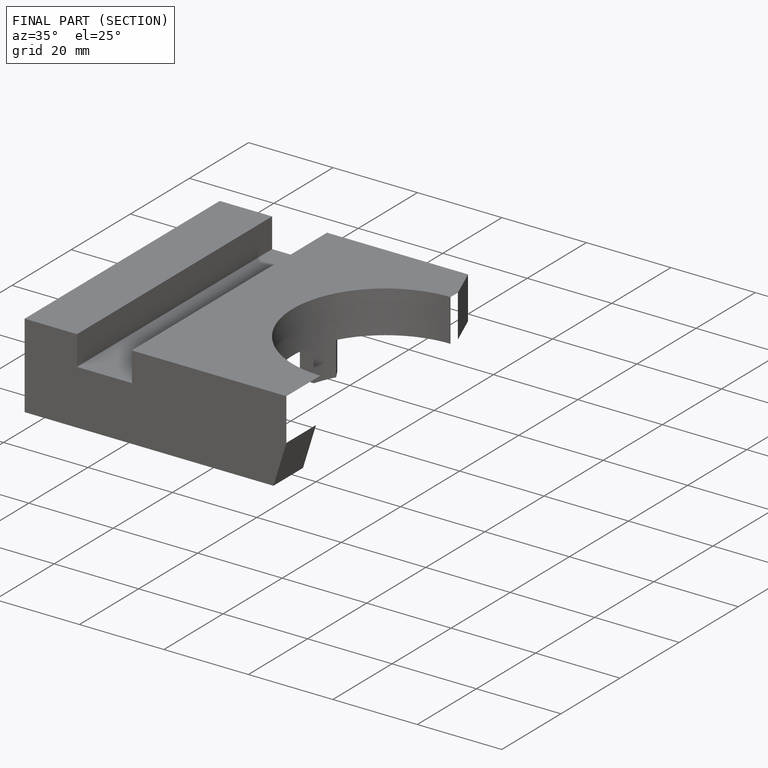
[diagram: finished part — half-section view (interior)]
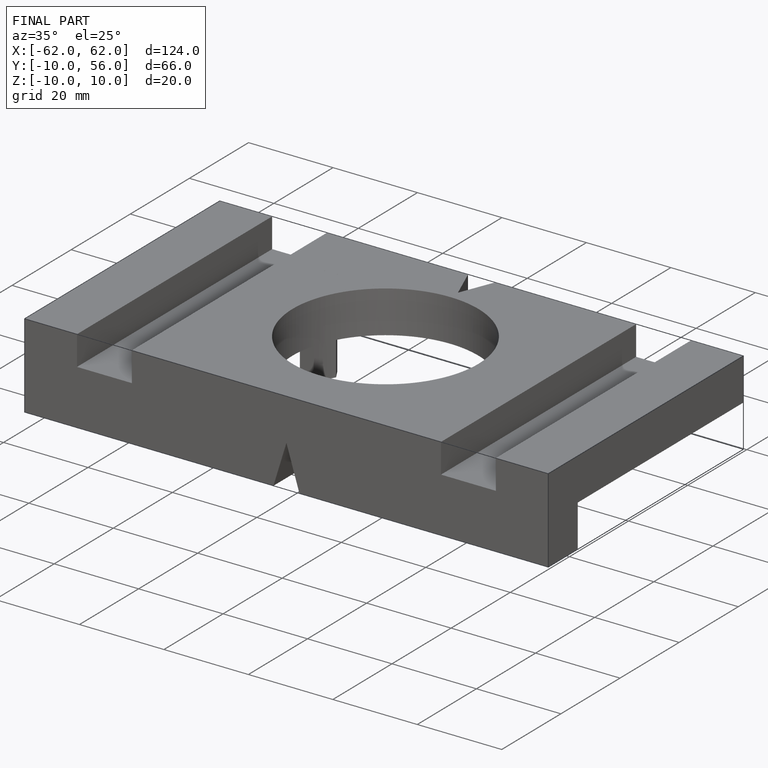
[diagram: finished part — iso view with bounding-box wireframe]
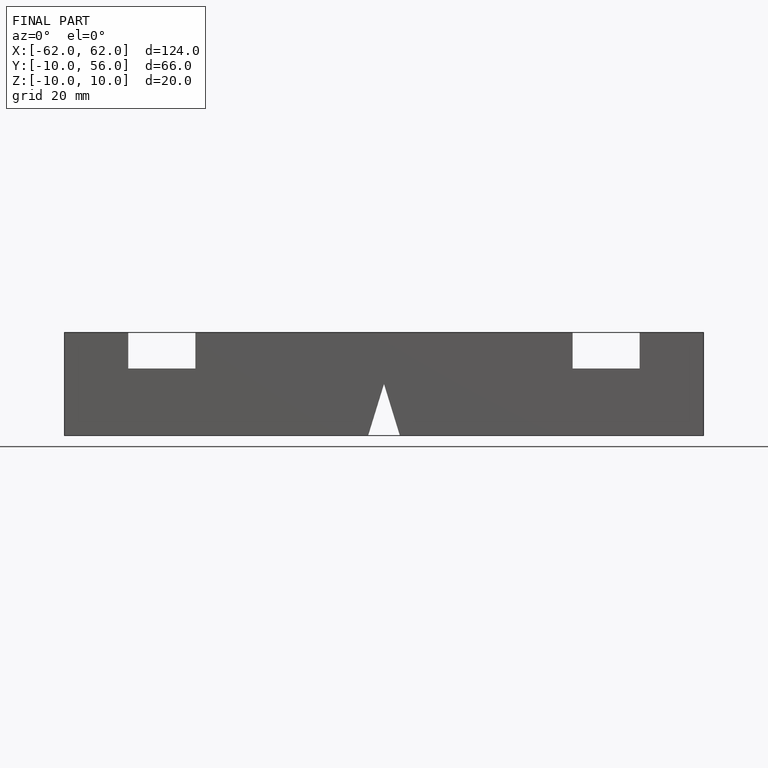
[diagram: finished part — front view with bounding-box wireframe]
